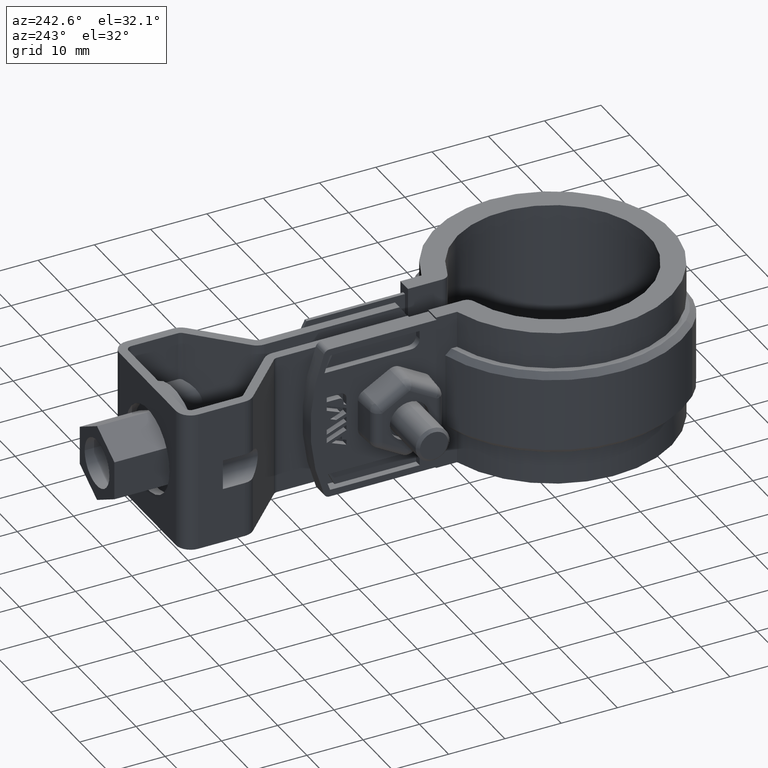
[diagram: clean part render]
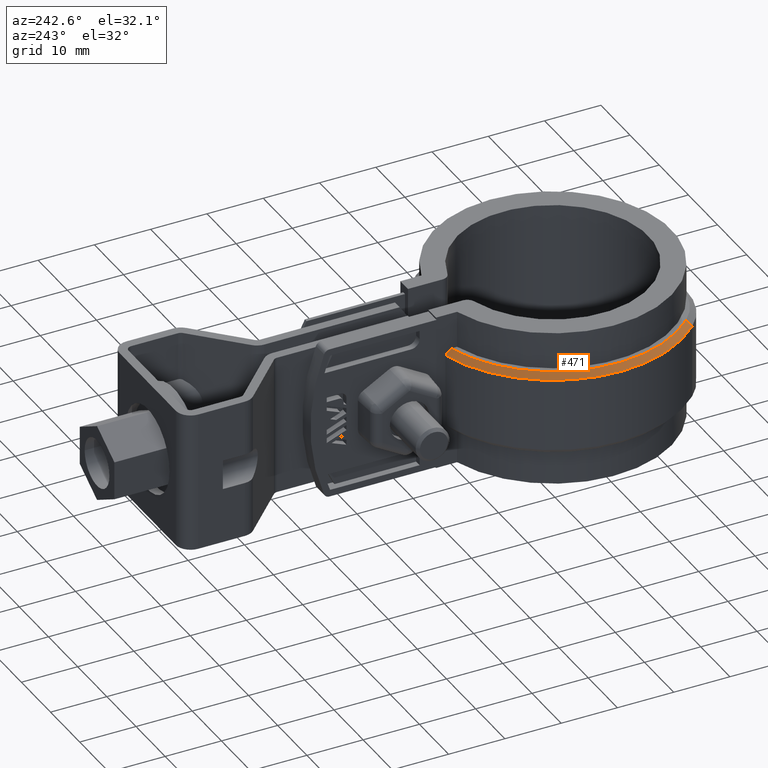
[diagram: same view with one face highlighted and labeled with its STEP entity id]
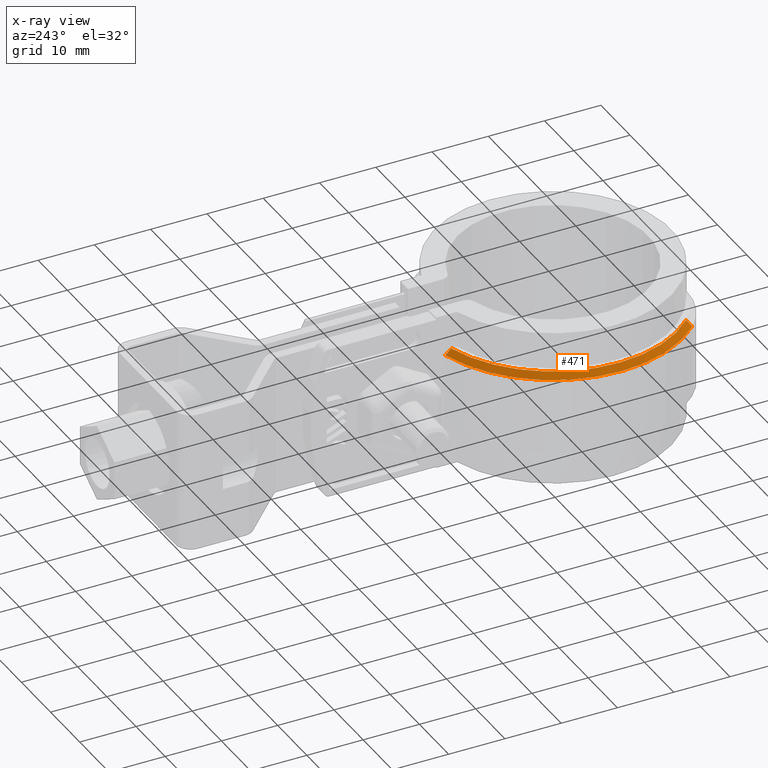
[diagram: x-ray of the same camera — body ghosted, the highlighted face saturated]
A machine part, auxiliary view. The second image highlights one B-rep face of the part: STEP entity #471.
The next image is the same camera in x-ray: the body ghosted, the highlighted face saturated — about 0% of this face is hidden behind the body in this view.
In plain terms, the highlighted conical surface has half-angle 45 deg.
Its self-contained STEP definition (entity closure, byte-faithful):
#471 = ADVANCED_FACE( '', ( #918 ), #919, .T. );
#918 = FACE_OUTER_BOUND( '', #2011, .T. );
#919 = CONICAL_SURFACE( '', #2012, 22.0950000000000, 0.785398163397447 );
#2011 = EDGE_LOOP( '', ( #4273, #4274, #4275, #4276 ) );
#2012 = AXIS2_PLACEMENT_3D( '', #4277, #4278, #4279 );
#4273 = ORIENTED_EDGE( '', *, *, #6270, .F. );
#4274 = ORIENTED_EDGE( '', *, *, #6468, .F. );
#4275 = ORIENTED_EDGE( '', *, *, #6465, .F. );
#4276 = ORIENTED_EDGE( '', *, *, #6469, .F. );
#4277 = CARTESIAN_POINT( '', ( -8.67361737988404E-016, -6.93889390390723E-015, -5.00000000000000 ) );
#4278 = DIRECTION( '', ( 0.000000000000000, 0.000000000000000, -1.00000000000000 ) );
#4279 = DIRECTION( '', ( -1.00000000000000, 0.000000000000000, 0.000000000000000 ) );
#6270 = EDGE_CURVE( '', #7299, #7301, #7302, .T. );
#6465 = EDGE_CURVE( '', #7622, #7623, #7624, .T. );
#6468 = EDGE_CURVE( '', #7623, #7299, #7627, .T. );
#6469 = EDGE_CURVE( '', #7301, #7622, #7628, .F. );
#7299 = VERTEX_POINT( '', #9648 );
#7301 = VERTEX_POINT( '', #9651 );
#7302 = B_SPLINE_CURVE_WITH_KNOTS( '', 3, ( #9652, #9653, #9654, #9655 ), .UNSPECIFIED., .F., .F., ( 4, 4 ), ( 9.81307786677359E-018, 0.00144175553964642 ), .UNSPECIFIED. );
#7622 = VERTEX_POINT( '', #10829 );
#7623 = VERTEX_POINT( '', #10830 );
#7624 = LINE( '', #10831, #10832 );
#7627 = CIRCLE( '', #10835, 23.0950000000000 );
#7628 = CIRCLE( '', #10836, 22.0950000000000 );
#9648 = CARTESIAN_POINT( '', ( -6.10000000000002, 22.2748518513592, -6.00000000000000 ) );
#9651 = CARTESIAN_POINT( '', ( -6.10000000000002, 21.2362667387655, -5.00000000000000 ) );
#9652 = CARTESIAN_POINT( '', ( -6.10000000000002, 22.2748518513592, -6.00000000000000 ) );
#9653 = CARTESIAN_POINT( '', ( -6.10000000000002, 21.9289403275758, -5.66637246391195 ) );
#9654 = CARTESIAN_POINT( '', ( -6.10000000000002, 21.5827583504448, -5.33302504133812 ) );
#9655 = CARTESIAN_POINT( '', ( -6.10000000000002, 21.2362667387655, -5.00000000000000 ) );
#10829 = CARTESIAN_POINT( '', ( -15.7021955308702, -15.5444549763033, -5.00000000000000 ) );
#10830 = CARTESIAN_POINT( '', ( -16.4128629004502, -16.2479831490258, -6.00000000000000 ) );
#10831 = CARTESIAN_POINT( '', ( -15.7021955308702, -15.5444549763033, -5.00000000000000 ) );
#10832 = VECTOR( '', #12730, 1000.00000000000 );
#10835 = AXIS2_PLACEMENT_3D( '', #12737, #12738, #12739 );
#10836 = AXIS2_PLACEMENT_3D( '', #12740, #12741, #12742 );
#12730 = DIRECTION( '', ( -0.502517716198026, -0.497469541687849, -0.707106781186549 ) );
#12737 = CARTESIAN_POINT( '', ( -8.67361737988404E-016, -6.93889390390723E-015, -6.00000000000000 ) );
#12738 = DIRECTION( '', ( 0.000000000000000, 0.000000000000000, -1.00000000000000 ) );
#12739 = DIRECTION( '', ( -1.00000000000000, 0.000000000000000, 0.000000000000000 ) );
#12740 = CARTESIAN_POINT( '', ( -8.67361737988404E-016, -6.93889390390723E-015, -5.00000000000000 ) );
#12741 = DIRECTION( '', ( 0.000000000000000, 0.000000000000000, -1.00000000000000 ) );
#12742 = DIRECTION( '', ( -1.00000000000000, 0.000000000000000, 0.000000000000000 ) );